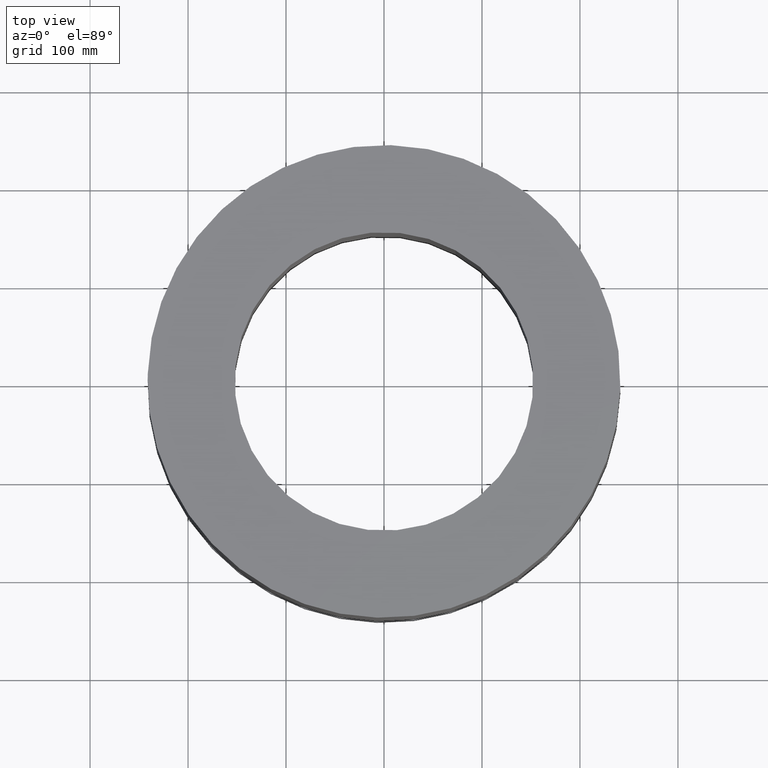
[diagram: clean part render]
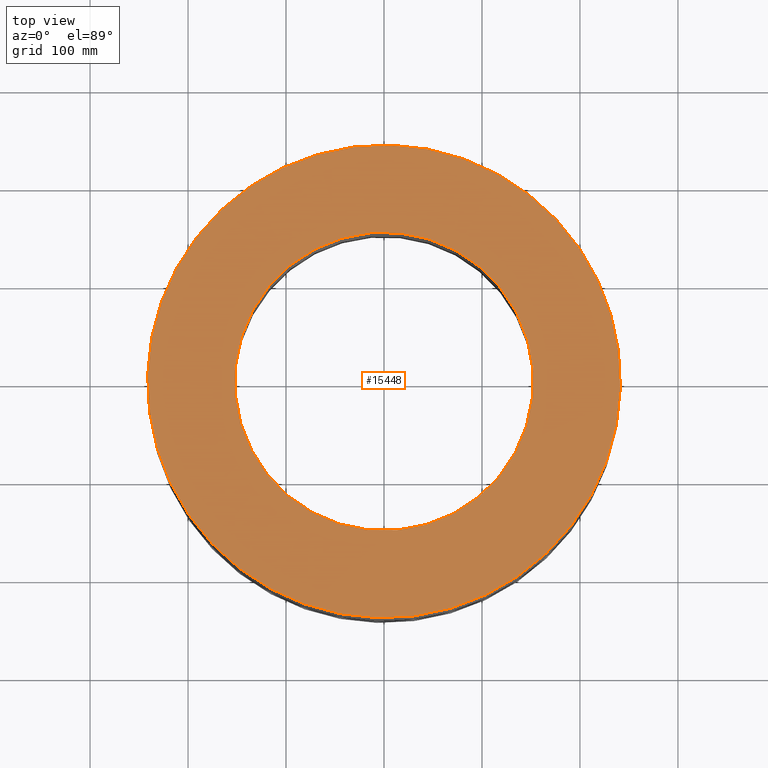
[diagram: same view with one face highlighted and labeled with its STEP entity id]
A machine part, top view. The second image highlights one B-rep face of the part: STEP entity #15448.
In plain terms, the highlighted planar face has unit normal (0, 0, -1).
Its self-contained STEP definition (entity closure, byte-faithful):
#4644=AXIS2_PLACEMENT_3D('Circle Axis2P3D',#4642,#4643,$) ;
#4663=AXIS2_PLACEMENT_3D('Circle Axis2P3D',#4661,#4662,$) ;
#15424=AXIS2_PLACEMENT_3D('Plane Axis2P3D',#15421,#15422,#15423) ;
#15432=AXIS2_PLACEMENT_3D('Circle Axis2P3D',#15430,#15431,$) ;
#15441=AXIS2_PLACEMENT_3D('Circle Axis2P3D',#15439,#15440,$) ;
#4639=CARTESIAN_POINT('Vertex',(4.55454261676,8.33703433799,11.9375)) ;
#4642=CARTESIAN_POINT('Axis2P3D Location',(0.,0.,11.9375)) ;
#4646=CARTESIAN_POINT('Vertex',(-4.55454261676,-8.33703433799,11.9375)) ;
#4661=CARTESIAN_POINT('Axis2P3D Location',(0.,0.,11.9375)) ;
#15421=CARTESIAN_POINT('Axis2P3D Location',(0.,9.50000000004,11.9375)) ;
#15430=CARTESIAN_POINT('Axis2P3D Location',(0.,0.,11.9375)) ;
#15434=CARTESIAN_POINT('Vertex',(-2.87655323164,-5.26549537136,11.9375)) ;
#15436=CARTESIAN_POINT('Vertex',(2.87655323164,5.26549537136,11.9375)) ;
#15439=CARTESIAN_POINT('Axis2P3D Location',(0.,0.,11.9375)) ;
#4643=DIRECTION('Axis2P3D Direction',(0.,0.,-0.0393700787402)) ;
#4662=DIRECTION('Axis2P3D Direction',(0.,0.,-0.0393700787402)) ;
#15422=DIRECTION('Axis2P3D Direction',(0.,0.,-0.0393700787402)) ;
#15423=DIRECTION('Axis2P3D XDirection',(0.0393700787402,0.,0.)) ;
#15431=DIRECTION('Axis2P3D Direction',(0.,0.,-0.0393700787402)) ;
#15440=DIRECTION('Axis2P3D Direction',(0.,0.,-0.0393700787402)) ;
#15427=ORIENTED_EDGE('',*,*,#4648,.F.) ;
#15428=ORIENTED_EDGE('',*,*,#4665,.F.) ;
#15445=ORIENTED_EDGE('',*,*,#15438,.T.) ;
#15446=ORIENTED_EDGE('',*,*,#15443,.T.) ;
#15447=FACE_BOUND('',#15444,.T.) ;
#15448=ADVANCED_FACE('PartBody',(#15429,#15447),#15425,.F.) ;
#4645=CIRCLE('generated circle',#4644,9.50000000004) ;
#4664=CIRCLE('generated circle',#4663,9.50000000004) ;
#15433=CIRCLE('generated circle',#15432,6.00000000002) ;
#15442=CIRCLE('generated circle',#15441,6.00000000002) ;
#4648=EDGE_CURVE('',#4640,#4647,#4645,.T.) ;
#4665=EDGE_CURVE('',#4647,#4640,#4664,.T.) ;
#15438=EDGE_CURVE('',#15435,#15437,#15433,.T.) ;
#15443=EDGE_CURVE('',#15437,#15435,#15442,.T.) ;
#15426=EDGE_LOOP('',(#15427,#15428)) ;
#15444=EDGE_LOOP('',(#15445,#15446)) ;
#15429=FACE_OUTER_BOUND('',#15426,.T.) ;
#15425=PLANE('',#15424) ;
#4640=VERTEX_POINT('',#4639) ;
#4647=VERTEX_POINT('',#4646) ;
#15435=VERTEX_POINT('',#15434) ;
#15437=VERTEX_POINT('',#15436) ;